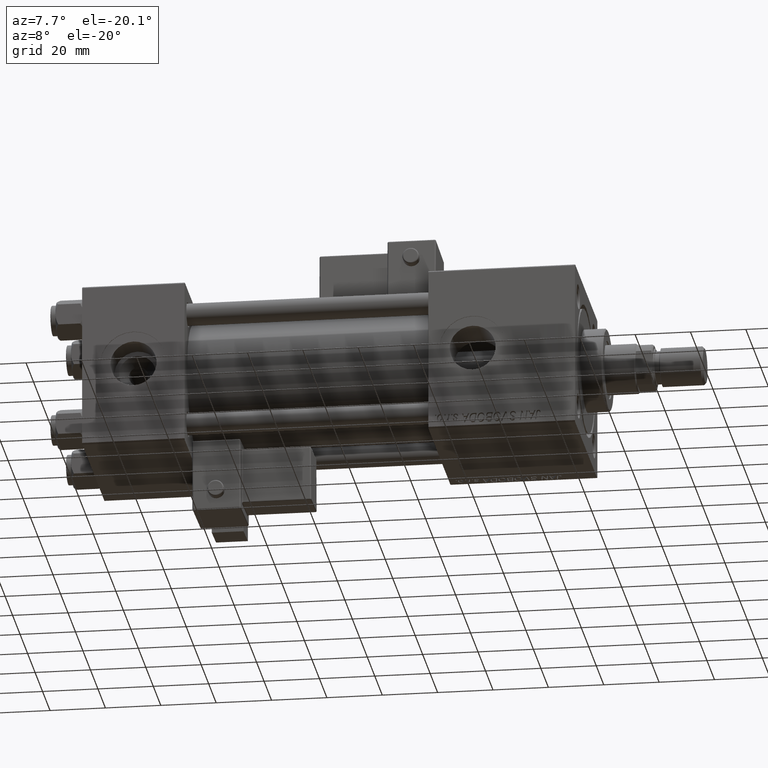
[diagram: clean part render]
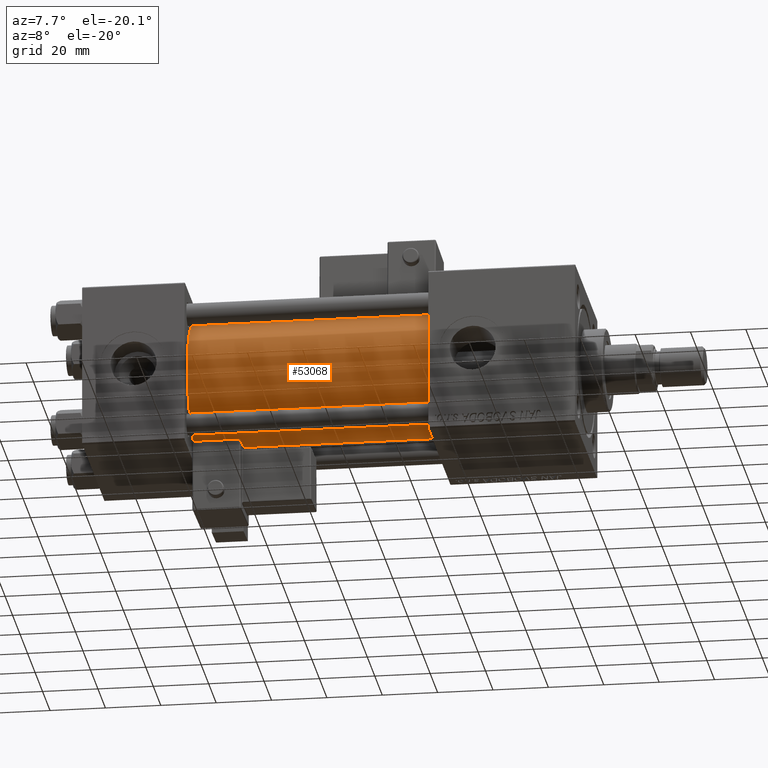
[diagram: same view with one face highlighted and labeled with its STEP entity id]
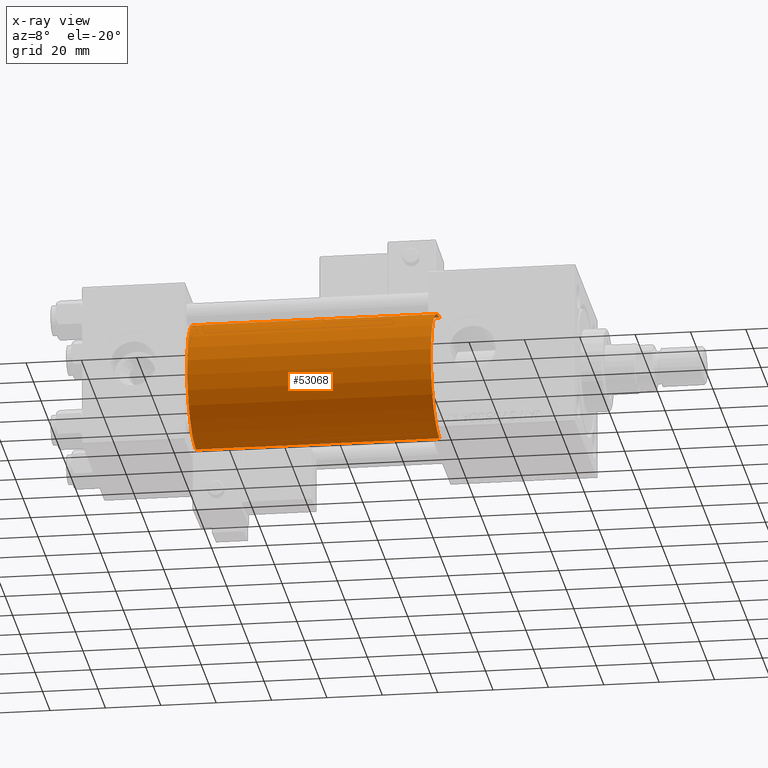
[diagram: x-ray of the same camera — body ghosted, the highlighted face saturated]
A machine part, auxiliary view. The second image highlights one B-rep face of the part: STEP entity #53068.
The next image is the same camera in x-ray: the body ghosted, the highlighted face saturated — about 0% of this face is hidden behind the body in this view.
In plain terms, the highlighted cylindrical surface (partial cylindrical patch) has radius 23 mm, axis along (-1, -0, -0).
Its self-contained STEP definition (entity closure, byte-faithful):
#5522 = DIRECTION ( 'NONE',  ( -1.000000000000000000, -0.000000000000000000, -0.000000000000000000 ) ) ;
#5908 = EDGE_CURVE ( 'NONE', #38656, #25088, #46088, .T. ) ;
#6564 = EDGE_CURVE ( 'NONE', #8198, #25158, #50578, .T. ) ;
#6615 = CARTESIAN_POINT ( 'NONE',  ( 125.0000000000000000, 2.146024240737016609E-16, -23.00000000000000000 ) ) ;
#8198 = VERTEX_POINT ( 'NONE', #20986 ) ;
#9907 = DIRECTION ( 'NONE',  ( -1.000000000000000000, -0.000000000000000000, -0.000000000000000000 ) ) ;
#10115 = CARTESIAN_POINT ( 'NONE',  ( 37.00000000000000711, -2.602085213965210642E-15, 0.000000000000000000 ) ) ;
#10116 = CARTESIAN_POINT ( 'NONE',  ( 125.0000000000000000, -2.602085213965210642E-15, 23.00000000000000000 ) ) ;
#15256 = ORIENTED_EDGE ( 'NONE', *, *, #50102, .T. ) ;
#18326 = DIRECTION ( 'NONE',  ( 1.000000000000000000, 0.000000000000000000, 0.000000000000000000 ) ) ;
#18748 = DIRECTION ( 'NONE',  ( 1.000000000000000000, -0.000000000000000000, 0.000000000000000000 ) ) ;
#20888 = EDGE_CURVE ( 'NONE', #25088, #25158, #48305, .T. ) ;
#20986 = CARTESIAN_POINT ( 'NONE',  ( 37.00000000000000711, -2.602085213965210642E-15, 23.00000000000000000 ) ) ;
#22149 = AXIS2_PLACEMENT_3D ( 'NONE', #43337, #18326, #27490 ) ;
#25088 = VERTEX_POINT ( 'NONE', #51269 ) ;
#25158 = VERTEX_POINT ( 'NONE', #35428 ) ;
#27095 = DIRECTION ( 'NONE',  ( 0.000000000000000000, 0.000000000000000000, 1.000000000000000000 ) ) ;
#27490 = DIRECTION ( 'NONE',  ( 0.000000000000000000, 0.000000000000000000, -1.000000000000000000 ) ) ;
#29602 = VECTOR ( 'NONE', #44415, 1000.000000000000000 ) ;
#33734 = AXIS2_PLACEMENT_3D ( 'NONE', #10115, #18748, #27095 ) ;
#34661 = AXIS2_PLACEMENT_3D ( 'NONE', #42995, #9907, #35477 ) ;
#34662 = CYLINDRICAL_SURFACE ( 'NONE', #34661, 23.00000000000000000 ) ;
#35199 = FACE_OUTER_BOUND ( 'NONE', #36494, .T. ) ;
#35428 = CARTESIAN_POINT ( 'NONE',  ( 37.00000000000000711, 2.146024240737016609E-16, -23.00000000000000000 ) ) ;
#35477 = DIRECTION ( 'NONE',  ( 0.000000000000000000, 0.000000000000000000, 1.000000000000000000 ) ) ;
#36494 = EDGE_LOOP ( 'NONE', ( #52495, #54102, #15256, #48220 ) ) ;
#38656 = VERTEX_POINT ( 'NONE', #10116 ) ;
#39672 = LINE ( 'NONE', #43590, #52258 ) ;
#42995 = CARTESIAN_POINT ( 'NONE',  ( 125.0000000000000000, -2.602085213965210642E-15, 0.000000000000000000 ) ) ;
#43337 = CARTESIAN_POINT ( 'NONE',  ( 125.0000000000000000, -2.602085213965210642E-15, 0.000000000000000000 ) ) ;
#43590 = CARTESIAN_POINT ( 'NONE',  ( 125.0000000000000000, -2.602085213965210642E-15, 23.00000000000000000 ) ) ;
#44415 = DIRECTION ( 'NONE',  ( -1.000000000000000000, -0.000000000000000000, -0.000000000000000000 ) ) ;
#46088 = CIRCLE ( 'NONE', #22149, 23.00000000000000000 ) ;
#48220 = ORIENTED_EDGE ( 'NONE', *, *, #6564, .T. ) ;
#48305 = LINE ( 'NONE', #6615, #29602 ) ;
#50102 = EDGE_CURVE ( 'NONE', #38656, #8198, #39672, .T. ) ;
#50578 = CIRCLE ( 'NONE', #33734, 23.00000000000000000 ) ;
#51269 = CARTESIAN_POINT ( 'NONE',  ( 125.0000000000000000, 2.146024240737016609E-16, -23.00000000000000000 ) ) ;
#52258 = VECTOR ( 'NONE', #5522, 1000.000000000000000 ) ;
#52495 = ORIENTED_EDGE ( 'NONE', *, *, #20888, .F. ) ;
#53068 = ADVANCED_FACE ( 'NONE', ( #35199 ), #34662, .T. ) ;
#54102 = ORIENTED_EDGE ( 'NONE', *, *, #5908, .F. ) ;